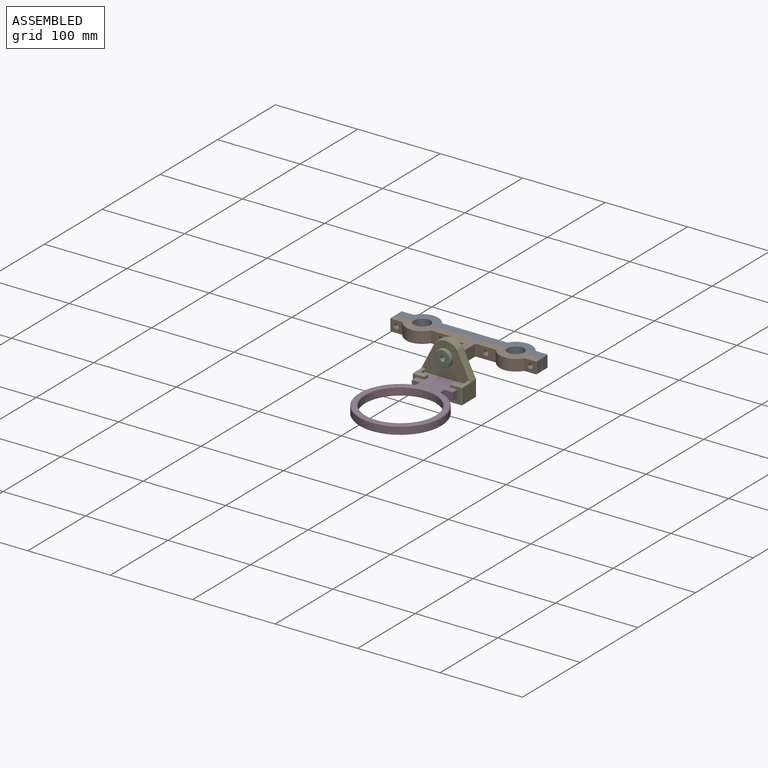
[diagram: assembled view]
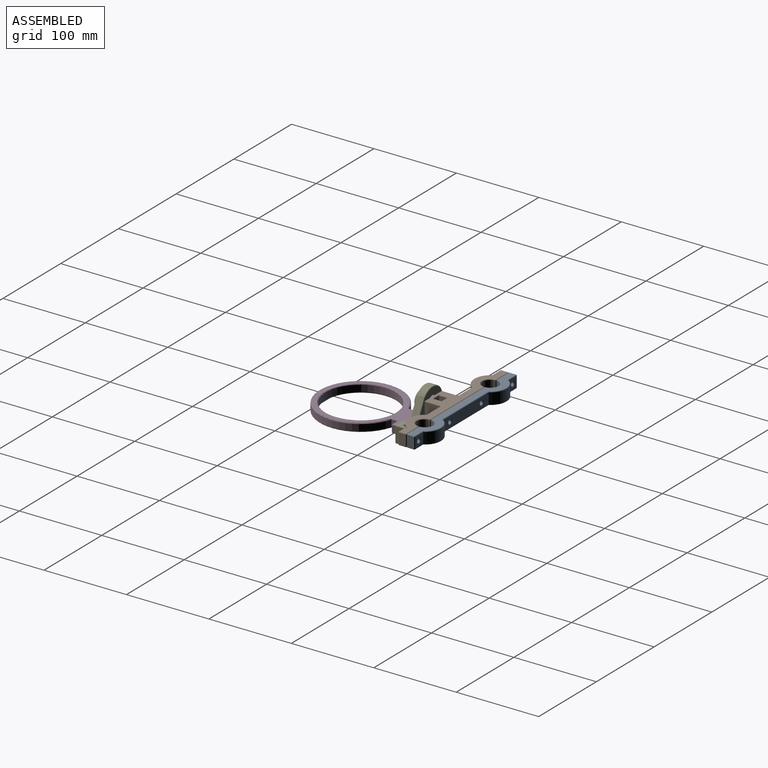
[diagram: assembled view, second angle]
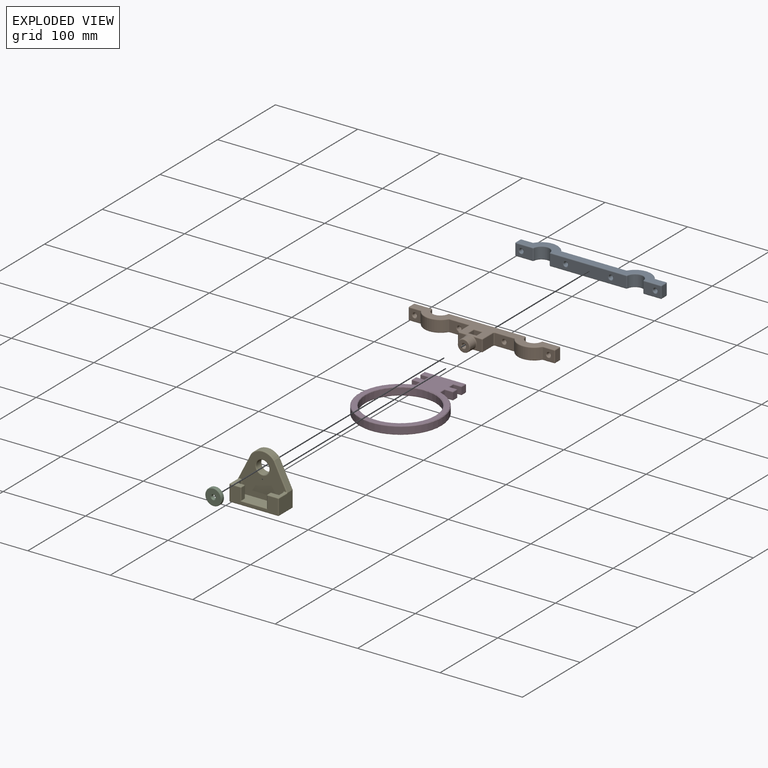
[diagram: exploded view]
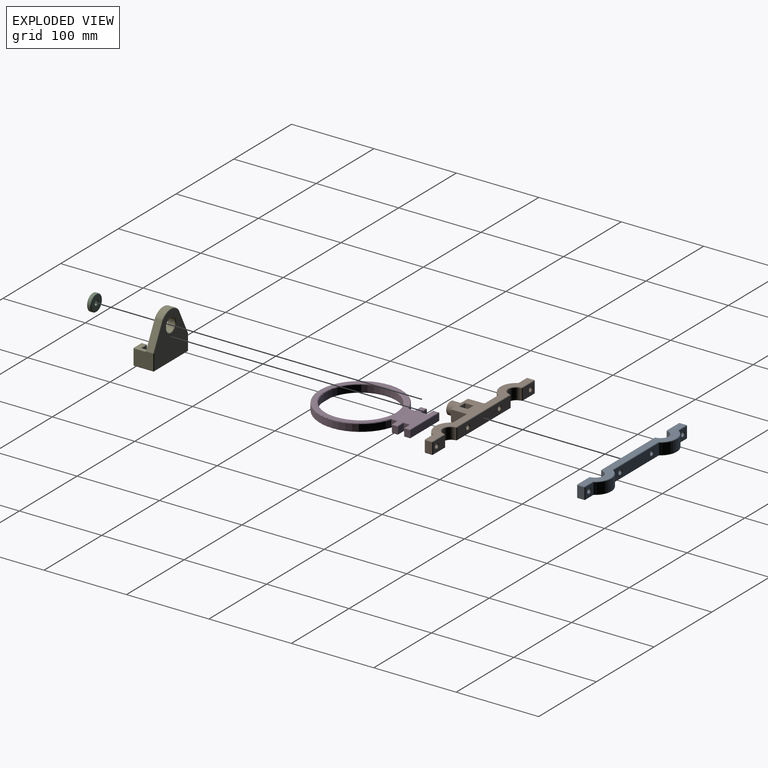
[diagram: exploded view, second angle]
ASSEMBLY  parts=5 mates=4
PART A: 86 faces, bbox 177.6x21.4x15 mm
  f0: cylinder r=19.75mm len=33.49mm, axis (0,0,-1), area 519.7mm2, adj f74,f79,f82,f85
  f1: plane 13.44x13mm, normal (0,1,0), area 136.2mm2, adj f25,f71,f80,f81,f85
  f2: plane 13x8mm, normal (-1,0,0), area 104mm2, adj f61,f70,f71,f72
  f3: plane 20.33x13mm, normal (0,-1,0), area 225.8mm2, adj f18,f51,f60,f61,f62
  f4: cylinder r=9.75mm len=19.42mm, axis (0,0,-1), area 374.6mm2, adj f41,f50,f51,f52
  f5: plane 92.09x13mm, normal (0,-1,0), area 1120.2mm2, adj f20,f21,f31,f40,f41,f42
  f6: cylinder r=9.75mm len=19.42mm, axis (0,0,-1), area 374.6mm2, adj f26,f30,f31,f32
  f7: plane 20.33x13mm, normal (0,-1,0), area 225.8mm2, adj f19,f26,f29,f33,f34
  f8: plane 13x8mm, normal (1,0,0), area 104mm2, adj f34,f39,f43,f44
  f9: plane 13.44x13mm, normal (0,1,0), area 136.2mm2, adj f23,f44,f49,f53,f54
  f10: cylinder r=19.75mm len=33.49mm, axis (0,0,-1), area 519.7mm2, adj f54,f59,f63,f64
  f11: plane 78.31x13mm, normal (0,1,0), area 941.1mm2, adj f22,f24,f64,f69,f73,f74
  f12: plane 175.56x17.75mm, normal (0,0,1), area 1541.6mm2, adj f29,f30,f39,f40,f49,f50,f55,f59
  f13: plane 175.56x17.75mm, normal (0,0,-1), area 1541.6mm2, adj f32,f33,f42,f43,f52,f53,f58,f62
  f14: cylinder r=2.5mm len=8mm, axis (0,-1,0), area 125.7mm2, adj f21,f22
  f15: cylinder r=2.5mm len=8mm, axis (0,-1,0), area 125.7mm2, adj f20,f24
  f16: cylinder r=2.5mm len=8mm, axis (0,-1,0), area 125.7mm2, adj f19,f23
  f17: cylinder r=2.5mm len=8mm, axis (0,-1,0), area 125.7mm2, adj f18,f25
  f18: torus R=3.5mm, axis (0,1,0), area 28.3mm2, adj f3,f17
  f19: torus R=3.5mm, axis (0,1,0), area 28.3mm2, adj f7,f16
  f20: torus R=3.5mm, axis (0,1,0), area 28.3mm2, adj f5,f15
  f21: torus R=3.5mm, axis (0,1,0), area 28.3mm2, adj f5,f14
  f22: torus R=3.5mm, axis (0,1,0), area 28.3mm2, adj f11,f14
  f23: torus R=3.5mm, axis (0,-1,0), area 28.3mm2, adj f9,f16
  f24: torus R=3.5mm, axis (0,1,0), area 28.3mm2, adj f11,f15
  f25: torus R=3.5mm, axis (0,-1,0), area 28.3mm2, adj f1,f17
  f26: cylinder r=1mm len=13mm, axis (0,0,-1), area 19.2mm2, adj f6,f7,f27,f28
  f27: sphere r=1mm, area 1.5mm2, adj f26,f29,f30
  f28: sphere r=1mm, area 1.5mm2, adj f26,f32,f33
  f29: cylinder r=1mm len=20.33mm, axis (-1,0,0), area 31.9mm2, adj f7,f12,f27,f35
  f30: torus R=10.75mm, axis (0,0,1), area 46.9mm2, adj f6,f12,f27,f36
  f31: cylinder r=1mm len=13mm, axis (0,0,-1), area 19.2mm2, adj f5,f6,f36,f37
  f32: torus R=10.75mm, axis (0,0,1), area 46.9mm2, adj f6,f13,f28,f37
  f33: cylinder r=1mm len=20.33mm, axis (1,0,0), area 31.9mm2, adj f7,f13,f28,f38
  f34: cylinder r=1mm len=13mm, axis (0,0,-1), area 20.4mm2, adj f7,f8,f35,f38
  f35: sphere r=1mm, area 1.6mm2, adj f29,f34,f39
  f36: sphere r=1mm, area 1.5mm2, adj f30,f31,f40
  f37: sphere r=1mm, area 1.5mm2, adj f31,f32,f42
  f38: sphere r=1mm, area 1.6mm2, adj f33,f34,f43
  f39: cylinder r=1mm len=8mm, axis (0,-1,0), area 12.6mm2, adj f8,f12,f35,f45
  f40: cylinder r=1mm len=92.09mm, axis (-1,0,0), area 144.7mm2, adj f5,f12,f36,f46
  f41: cylinder r=1mm len=13mm, axis (0,0,-1), area 19.2mm2, adj f4,f5,f46,f47
  f42: cylinder r=1mm len=92.09mm, axis (1,0,0), area 144.7mm2, adj f5,f13,f37,f47
  f43: cylinder r=1mm len=8mm, axis (0,1,0), area 12.6mm2, adj f8,f13,f38,f48
  f44: cylinder r=1mm len=13mm, axis (0,0,-1), area 20.4mm2, adj f8,f9,f45,f48
  f45: sphere r=1mm, area 1.6mm2, adj f39,f44,f49
  f46: sphere r=1mm, area 1.5mm2, adj f40,f41,f50
  f47: sphere r=1mm, area 1.5mm2, adj f41,f42,f52
  f48: sphere r=1mm, area 1.6mm2, adj f43,f44,f53
  f49: cylinder r=1mm len=13.44mm, axis (1,0,0), area 21.1mm2, adj f9,f12,f45,f55
  f50: torus R=10.75mm, axis (0,0,1), area 46.9mm2, adj f4,f12,f46,f56
  f51: cylinder r=1mm len=13mm, axis (0,0,-1), area 19.2mm2, adj f3,f4,f56,f57
  f52: torus R=10.75mm, axis (0,0,1), area 46.9mm2, adj f4,f13,f47,f57
  f53: cylinder r=1mm len=13.44mm, axis (-1,0,0), area 21.1mm2, adj f9,f13,f48,f58
  f54: cylinder r=1mm len=13mm, axis (0,0,-1), area 13.2mm2, adj f9,f10,f55,f58
  f55: torus R=2mm, axis (0,0,1), area 2.2mm2, adj f12,f49,f54,f59
  f56: sphere r=1mm, area 1.5mm2, adj f50,f51,f60
  f57: sphere r=1mm, area 1.5mm2, adj f51,f52,f62
  f58: torus R=2mm, axis (0,0,1), area 2.2mm2, adj f13,f53,f54,f63
  f59: torus R=18.75mm, axis (0,0,1), area 61.6mm2, adj f10,f12,f55,f65
  f60: cylinder r=1mm len=20.33mm, axis (-1,0,0), area 31.9mm2, adj f3,f12,f56,f66
  f61: cylinder r=1mm len=13mm, axis (0,0,-1), area 20.4mm2, adj f2,f3,f66,f67
  f62: cylinder r=1mm len=20.33mm, axis (1,0,0), area 31.9mm2, adj f3,f13,f57,f67
  f63: torus R=18.75mm, axis (0,0,1), area 61.6mm2, adj f10,f13,f58,f68
  f64: cylinder r=1mm len=13mm, axis (0,0,-1), area 13.2mm2, adj f10,f11,f65,f68
  f65: torus R=2mm, axis (0,0,1), area 2.2mm2, adj f12,f59,f64,f69
  f66: sphere r=1mm, area 1.6mm2, adj f60,f61,f70
  f67: sphere r=1mm, area 1.6mm2, adj f61,f62,f72
  f68: torus R=2mm, axis (0,0,1), area 2.2mm2, adj f13,f63,f64,f73
  f69: cylinder r=1mm len=78.31mm, axis (1,0,0), area 123mm2, adj f11,f12,f65,f75
  f70: cylinder r=1mm len=8mm, axis (0,1,0), area 12.6mm2, adj f2,f12,f66,f76
  f71: cylinder r=1mm len=13mm, axis (0,0,-1), area 20.4mm2, adj f1,f2,f76,f77
  f72: cylinder r=1mm len=8mm, axis (0,-1,0), area 12.6mm2, adj f2,f13,f67,f77
  f73: cylinder r=1mm len=78.31mm, axis (-1,0,0), area 123mm2, adj f11,f13,f68,f78
  f74: cylinder r=1mm len=13mm, axis (0,0,-1), area 13.2mm2, adj f0,f11,f75,f78
  f75: torus R=2mm, axis (0,0,1), area 2.2mm2, adj f12,f69,f74,f79
  f76: sphere r=1mm, area 1.6mm2, adj f70,f71,f80
  f77: sphere r=1mm, area 1.6mm2, adj f71,f72,f81
  f78: torus R=2mm, axis (0,0,1), area 2.2mm2, adj f13,f73,f74,f82
  f79: torus R=18.75mm, axis (0,0,1), area 61.6mm2, adj f0,f12,f75,f83
  f80: cylinder r=1mm len=13.44mm, axis (1,0,0), area 21.1mm2, adj f1,f12,f76,f83
  f81: cylinder r=1mm len=13.44mm, axis (-1,0,0), area 21.1mm2, adj f1,f13,f77,f84
  f82: torus R=18.75mm, axis (0,0,1), area 61.6mm2, adj f0,f13,f78,f84
  f83: torus R=2mm, axis (0,0,1), area 2.2mm2, adj f12,f79,f80,f85
  f84: torus R=2mm, axis (0,0,1), area 2.2mm2, adj f13,f81,f82,f85
  f85: cylinder r=1mm len=13mm, axis (0,0,-1), area 13.2mm2, adj f0,f1,f83,f84
PART B: 143 faces, bbox 177.6x41x16.2 mm
  f0: cylinder r=7.5mm len=15mm, axis (0,1,0), area 424.1mm2, adj f1,f137,f138,f139,f140,f141,f142
  f1: bspline ~4.96x1.76mm, area 3.8mm2, adj f0,f2,f137,f141
  f2: bspline ~5.48x1.48mm, area 3.5mm2, adj f1,f3,f136,f137
  f3: bspline ~5.48x1.03mm, area 4.7mm2, adj f2,f4,f135,f136
  f4: bspline ~5.48x1.03mm, area 4.7mm2, adj f3,f5,f6,f135
  f5: bspline ~5.48x1.48mm, area 3.5mm2, adj f4,f6,f140,f141
  f6: cylinder r=1mm len=8.61mm, axis (1,0,0), area 13.5mm2, adj f4,f5,f7,f134,f135
  f7: plane 13x8.52mm, normal (0,-1,0), area 83.5mm2, adj f6,f8,f133,f140
  f8: cylinder r=1mm len=13mm, axis (0,0,-1), area 20.4mm2, adj f7,f9,f132,f134
  f9: sphere r=1mm, area 1.6mm2, adj f8,f10,f133
  f10: cylinder r=1mm len=18mm, axis (0,-1,0), area 28.3mm2, adj f9,f11,f131,f132
  f11: plane 175.56x28mm, normal (0,0,1), area 1959.3mm2, adj f10,f12,f14,f16,f99,f100,f101,f102
  f12: bspline ~5.48x1.03mm, area 4.7mm2, adj f11,f13,f14,f133
  f13: bspline ~5.48x1.48mm, area 3.5mm2, adj f12,f133,f139,f140
  f14: bspline ~5.48x1.03mm, area 4.7mm2, adj f11,f12,f15,f16
  f15: bspline ~5.48x1.48mm, area 3.5mm2, adj f14,f16,f137,f138
  f16: cylinder r=1mm len=8.61mm, axis (-1,0,0), area 13.5mm2, adj f11,f14,f15,f17,f98
  f17: plane 13x8.52mm, normal (0,-1,0), area 83.5mm2, adj f16,f18,f136,f137
  f18: cylinder r=1mm len=13mm, axis (0,0,-1), area 20.4mm2, adj f17,f19,f97,f98
  f19: sphere r=1mm, area 1.6mm2, adj f18,f20,f136
  f20: cylinder r=1mm len=18mm, axis (0,-1,0), area 28.3mm2, adj f19,f21,f97,f135
  f21: torus R=2mm, axis (0,0,1), area 3.4mm2, adj f20,f22,f96,f135
  f22: cylinder r=1mm len=13mm, axis (0,0,1), area 20.4mm2, adj f21,f23,f97,f100
  f23: plane 23.16x13mm, normal (0,-1,0), area 262.5mm2, adj f22,f24,f95,f96,f101
  f24: cylinder r=1mm len=13mm, axis (0,0,-1), area 13.2mm2, adj f23,f25,f94,f102
  f25: cylinder r=19.75mm len=33.49mm, axis (0,0,-1), area 519.7mm2, adj f24,f26,f93,f103
  f26: torus R=18.75mm, axis (0,0,1), area 61.6mm2, adj f25,f27,f94,f135
  f27: torus R=2mm, axis (0,0,1), area 2.2mm2, adj f26,f28,f93,f135
  f28: cylinder r=1mm len=13.44mm, axis (1,0,0), area 21.1mm2, adj f27,f29,f92,f135
  f29: plane 13.44x13mm, normal (0,-1,0), area 136.2mm2, adj f28,f30,f91,f93,f105
  f30: cylinder r=1mm len=13mm, axis (0,0,-1), area 20.4mm2, adj f29,f31,f90,f92
  f31: plane 13x8mm, normal (-1,0,0), area 104mm2, adj f30,f32,f88,f106
  f32: cylinder r=1mm len=8mm, axis (0,-1,0), area 12.6mm2, adj f31,f33,f92,f135
  f33: sphere r=1mm, area 1.6mm2, adj f32,f34,f88
  f34: cylinder r=1mm len=20.33mm, axis (-1,0,0), area 31.9mm2, adj f33,f35,f87,f135
  f35: plane 20.33x13mm, normal (0,1,0), area 225.8mm2, adj f34,f36,f85,f88,f107
  f36: cylinder r=1mm len=13mm, axis (0,0,-1), area 19.2mm2, adj f35,f37,f84,f87
  f37: cylinder r=9.75mm len=19.42mm, axis (0,0,-1), area 374.6mm2, adj f36,f38,f83,f108
  f38: cylinder r=1mm len=13mm, axis (0,0,-1), area 19.2mm2, adj f37,f39,f79,f82
  f39: sphere r=1mm, area 1.5mm2, adj f38,f40,f83
  f40: cylinder r=1mm len=92.09mm, axis (-1,0,0), area 144.7mm2, adj f39,f41,f78,f79,f135
  f41: sphere r=1mm, area 0.5mm2, adj f40,f42,f76
  f42: torus R=10.75mm, axis (0,0,1), area 46.9mm2, adj f41,f43,f75,f78,f135
  f43: sphere r=1mm, area 1.5mm2, adj f42,f44,f73
  f44: cylinder r=1mm len=20.33mm, axis (-1,0,0), area 31.9mm2, adj f43,f45,f72,f135
  f45: sphere r=1mm, area 1mm2, adj f44,f46,f70
  f46: cylinder r=1mm len=8mm, axis (0,1,0), area 12.6mm2, adj f45,f47,f69,f135
  f47: sphere r=1mm, area 1.6mm2, adj f46,f48,f67
  f48: cylinder r=1mm len=13.44mm, axis (1,0,0), area 21.1mm2, adj f47,f49,f63,f135
  f49: torus R=2mm, axis (0,0,1), area 2.2mm2, adj f48,f50,f62,f135
  f50: torus R=18.75mm, axis (0,0,1), area 61.6mm2, adj f49,f51,f61,f135
  f51: torus R=2mm, axis (0,0,1), area 2.2mm2, adj f50,f52,f60,f135
  f52: cylinder r=1mm len=23.16mm, axis (1,0,0), area 36.4mm2, adj f51,f53,f56,f135
  f53: torus R=2mm, axis (0,0,1), area 3.4mm2, adj f52,f54,f55,f135
  f54: cylinder r=1mm len=18mm, axis (0,1,0), area 28.3mm2, adj f53,f132,f134,f135
  f55: cylinder r=1mm len=13mm, axis (0,0,1), area 20.4mm2, adj f53,f56,f131,f132
  f56: plane 23.16x13mm, normal (0,-1,0), area 262.5mm2, adj f52,f55,f57,f60,f117
  f57: torus R=3.5mm, axis (0,1,0), area 28.3mm2, adj f56,f58
  f58: cylinder r=2.5mm len=8mm, axis (0,-1,0), area 125.7mm2, adj f57,f59
  f59: torus R=3.5mm, axis (0,1,0), area 28.3mm2, adj f58,f79
  f60: cylinder r=1mm len=13mm, axis (0,0,-1), area 13.2mm2, adj f51,f56,f61,f116
  f61: cylinder r=19.75mm len=33.49mm, axis (0,0,-1), area 519.7mm2, adj f50,f60,f62,f115
  f62: cylinder r=1mm len=13mm, axis (0,0,-1), area 13.2mm2, adj f49,f61,f63,f114
  f63: plane 13.44x13mm, normal (0,-1,0), area 136.2mm2, adj f48,f62,f64,f67,f113
  f64: torus R=3.5mm, axis (0,1,0), area 28.3mm2, adj f63,f65
  f65: cylinder r=2.5mm len=8mm, axis (0,-1,0), area 125.7mm2, adj f64,f66
  f66: torus R=3.5mm, axis (0,-1,0), area 28.3mm2, adj f65,f72
  f67: cylinder r=1mm len=13mm, axis (0,0,-1), area 20.4mm2, adj f47,f63,f68,f69
  f68: sphere r=1mm, area 1.6mm2, adj f67,f112,f113
  f69: plane 13x8mm, normal (1,0,0), area 104mm2, adj f46,f67,f70,f112
  f70: cylinder r=1mm len=13mm, axis (0,0,-1), area 20.4mm2, adj f45,f69,f71,f72
  f71: sphere r=1mm, area 1.6mm2, adj f70,f111,f112
  f72: plane 20.33x13mm, normal (0,1,0), area 225.8mm2, adj f44,f66,f70,f73,f111
  f73: cylinder r=1mm len=13mm, axis (0,0,-1), area 19.2mm2, adj f43,f72,f74,f75
  f74: sphere r=1mm, area 0.9mm2, adj f73,f110,f111
  f75: cylinder r=9.75mm len=19.42mm, axis (0,0,-1), area 374.6mm2, adj f42,f73,f76,f110
  f76: cylinder r=1mm len=13mm, axis (0,0,-1), area 19.2mm2, adj f41,f75,f77,f79
  f77: sphere r=1mm, area 1.5mm2, adj f76,f109,f110
  f78: sphere r=1mm, area 0.2mm2, adj f40,f42
  f79: plane 92.09x13mm, normal (0,1,0), area 1120.2mm2, adj f38,f40,f59,f76,f80,f109
  f80: torus R=3.5mm, axis (0,1,0), area 28.3mm2, adj f79,f81
  f81: cylinder r=2.5mm len=8mm, axis (0,-1,0), area 125.7mm2, adj f80,f95
  f82: sphere r=1mm, area 1.5mm2, adj f38,f108,f109
  f83: torus R=10.75mm, axis (0,0,1), area 46.9mm2, adj f37,f39,f87,f135
  f84: sphere r=1mm, area 1.5mm2, adj f36,f107,f108
  f85: torus R=3.5mm, axis (0,-1,0), area 28.3mm2, adj f35,f86
  f86: cylinder r=2.5mm len=8mm, axis (0,-1,0), area 125.7mm2, adj f85,f91
  f87: sphere r=1mm, area 0.9mm2, adj f34,f36,f83
  f88: cylinder r=1mm len=13mm, axis (0,0,-1), area 20.4mm2, adj f31,f33,f35,f89
  f89: sphere r=1mm, area 2.1mm2, adj f88,f106,f107
  f90: sphere r=1mm, area 1.6mm2, adj f30,f105,f106
  f91: torus R=3.5mm, axis (0,1,0), area 28.3mm2, adj f29,f86
  f92: sphere r=1mm, area 1.6mm2, adj f28,f30,f32
  f93: cylinder r=1mm len=13mm, axis (0,0,-1), area 13.2mm2, adj f25,f27,f29,f104
  f94: torus R=2mm, axis (0,0,1), area 2.2mm2, adj f24,f26,f96,f135
  f95: torus R=3.5mm, axis (0,1,0), area 28.3mm2, adj f23,f81
  f96: cylinder r=1mm len=23.16mm, axis (1,0,0), area 36.4mm2, adj f21,f23,f94,f135
  f97: plane 18x13mm, normal (-1,0,0), area 234mm2, adj f18,f20,f22,f99
  f98: sphere r=1mm, area 1.6mm2, adj f16,f18,f99
  f99: cylinder r=1mm len=18mm, axis (0,1,0), area 28.3mm2, adj f11,f97,f98,f100
  f100: torus R=2mm, axis (0,0,1), area 3.4mm2, adj f11,f22,f99,f101
  f101: cylinder r=1mm len=23.16mm, axis (-1,0,0), area 36.4mm2, adj f11,f23,f100,f102
  f102: torus R=2mm, axis (0,0,1), area 2.2mm2, adj f11,f24,f101,f103
  f103: torus R=18.75mm, axis (0,0,1), area 61.6mm2, adj f11,f25,f102,f104
  f104: torus R=2mm, axis (0,0,1), area 2.2mm2, adj f11,f93,f103,f105
  f105: cylinder r=1mm len=13.44mm, axis (-1,0,0), area 21.1mm2, adj f11,f29,f90,f104
  f106: cylinder r=1mm len=8mm, axis (0,1,0), area 12.6mm2, adj f11,f31,f89,f90
  f107: cylinder r=1mm len=20.33mm, axis (1,0,0), area 31.9mm2, adj f11,f35,f84,f89
  f108: torus R=10.75mm, axis (0,0,1), area 46.9mm2, adj f11,f37,f82,f84
  f109: cylinder r=1mm len=92.09mm, axis (1,0,0), area 144.7mm2, adj f11,f77,f79,f82
  f110: torus R=10.75mm, axis (0,0,1), area 46.9mm2, adj f11,f74,f75,f77
  f111: cylinder r=1mm len=20.33mm, axis (1,0,0), area 31.9mm2, adj f11,f71,f72,f74
  f112: cylinder r=1mm len=8mm, axis (0,-1,0), area 12.6mm2, adj f11,f68,f69,f71
  f113: cylinder r=1mm len=13.44mm, axis (-1,0,0), area 21.1mm2, adj f11,f63,f68,f114
  f114: torus R=2mm, axis (0,0,1), area 2.2mm2, adj f11,f62,f113,f115
  f115: torus R=18.75mm, axis (0,0,1), area 61.6mm2, adj f11,f61,f114,f116
  f116: torus R=2mm, axis (0,0,1), area 2.2mm2, adj f11,f60,f115,f117
  f117: cylinder r=1mm len=23.16mm, axis (-1,0,0), area 36.4mm2, adj f11,f56,f116,f131
  f118: cylinder r=1mm len=12mm, axis (1,0,0), area 17.3mm2, adj f11,f119,f128,f130
  f119: plane 13x10mm, normal (0,-1,0), area 130mm2, adj f118,f120,f126,f127
  f120: plane 10x10mm, normal (0,0,1), area 100mm2, adj f119,f121,f126,f127
  f121: plane 13x10mm, normal (0,1,0), area 91.5mm2, adj f120,f122,f126,f127,f129
  f122: torus R=3.5mm, axis (0,-1,0), area 28.3mm2, adj f121,f123
  f123: cylinder r=2.5mm len=13mm, axis (0,-1,0), area 204.2mm2, adj f122,f124
  f124: torus R=3.5mm, axis (0,-1,0), area 28.3mm2, adj f123,f125
  f125: plane 13x13mm, normal (0,-1,0), area 94.2mm2, adj f124,f142
  f126: plane 13x10mm, normal (1,0,0), area 130mm2, adj f119,f120,f121,f128
  f127: plane 13x10mm, normal (-1,0,0), area 130mm2, adj f119,f120,f121,f130
  f128: cylinder r=1mm len=12mm, axis (0,1,0), area 17.3mm2, adj f11,f118,f126,f129
  f129: cylinder r=1mm len=12mm, axis (-1,0,0), area 17.3mm2, adj f11,f121,f128,f130
  f130: cylinder r=1mm len=12mm, axis (0,-1,0), area 17.3mm2, adj f11,f118,f127,f129
  f131: torus R=2mm, axis (0,0,1), area 3.4mm2, adj f10,f11,f55,f117
  f132: plane 18x13mm, normal (1,0,0), area 234mm2, adj f8,f10,f54,f55
  f133: cylinder r=1mm len=8.61mm, axis (-1,0,0), area 13.5mm2, adj f7,f9,f11,f12,f13
  f134: sphere r=1mm, area 1.6mm2, adj f6,f8,f54
  f135: plane 175.56x28mm, normal (0,0,-1), area 2103.3mm2, adj f3,f4,f6,f20,f21,f26,f27,f28
  f136: cylinder r=1mm len=8.61mm, axis (1,0,0), area 13.5mm2, adj f2,f3,f17,f19,f135
  f137: torus R=8.5mm, axis (0,1,0), area 21.7mm2, adj f0,f1,f2,f15,f17,f138
  f138: bspline ~4.96x1.76mm, area 3.8mm2, adj f0,f15,f137,f139
  f139: bspline ~4.96x1.76mm, area 3.8mm2, adj f0,f13,f138,f140
  f140: torus R=8.5mm, axis (0,1,0), area 21.7mm2, adj f0,f5,f7,f13,f139,f141
  f141: bspline ~4.96x1.76mm, area 3.8mm2, adj f0,f1,f5,f140
  f142: torus R=6.5mm, axis (0,-1,0), area 70.4mm2, adj f0,f125
PART C: 8 faces, bbox 21.6x21.6x5 mm
  f0: cylinder r=2.5mm len=5mm, axis (0,0,-1), area 47.1mm2, adj f4,f6
  f1: cylinder r=10mm len=20mm, axis (0,0,-1), area 188.5mm2, adj f5,f7
  f2: plane 18x18mm, normal (0,0,1), area 216mm2, adj f6,f7
  f3: plane 18x18mm, normal (0,0,-1), area 216mm2, adj f4,f5
  f4: torus R=3.5mm, axis (0,0,1), area 28.3mm2, adj f0,f3
  f5: torus R=9mm, axis (0,0,1), area 95.1mm2, adj f1,f3
  f6: torus R=3.5mm, axis (0,0,1), area 28.3mm2, adj f0,f2
  f7: torus R=9mm, axis (0,0,1), area 95.1mm2, adj f1,f2
PART D: 53 faces, bbox 108.2x131.8x10 mm
  f0: cylinder r=50mm len=100mm, axis (0,0,-1), area 2269.5mm2, adj f1,f15,f33,f50
  f1: plane 8x7.5mm, normal (1,0,0), area 60mm2, adj f0,f2,f31,f48
  f2: plane 10x8mm, normal (0,-1,0), area 80mm2, adj f1,f3,f29,f46
  f3: plane 8x7.5mm, normal (1,0,0), area 60mm2, adj f2,f4,f27,f44
  f4: plane 10x8mm, normal (0,1,0), area 80mm2, adj f3,f5,f25,f42
  f5: plane 8x7.5mm, normal (1,0,0), area 60mm2, adj f4,f6,f23,f40
  f6: plane 10x8mm, normal (0,-1,0), area 80mm2, adj f5,f7,f21,f38
  f7: plane 8x7.5mm, normal (1,0,0), area 60mm2, adj f6,f8,f19,f36
  f8: plane 50x8mm, normal (0,1,0), area 400mm2, adj f7,f9,f20,f37
  f9: plane 8x7.5mm, normal (-1,0,0), area 60mm2, adj f8,f10,f22,f39
  f10: plane 10x8mm, normal (0,-1,0), area 80mm2, adj f9,f11,f24,f41
  f11: plane 8x7.5mm, normal (-1,0,0), area 60mm2, adj f10,f12,f26,f43
  f12: plane 10x8mm, normal (0,1,0), area 80mm2, adj f11,f13,f28,f45
  f13: plane 8x7.5mm, normal (-1,0,0), area 60mm2, adj f12,f14,f30,f47
  f14: plane 10x8mm, normal (0,-1,0), area 80mm2, adj f13,f15,f32,f49
  f15: plane 8x7.5mm, normal (-1,0,0), area 60mm2, adj f0,f14,f34,f51
  f16: cylinder r=42.5mm len=85mm, axis (0,0,-1), area 2136.3mm2, adj f35,f52
  f17: plane 125.7x98mm, normal (0,0,1), area 2612.7mm2, adj f36,f37,f38,f39,f40,f41,f42,f43
  f18: plane 125.7x98mm, normal (0,0,-1), area 2612.7mm2, adj f19,f20,f21,f22,f23,f24,f25,f26
  f19: cylinder r=1mm len=7.5mm, axis (0,1,0), area 10.6mm2, adj f7,f18,f20,f21
  f20: cylinder r=1mm len=50mm, axis (-1,0,0), area 77.4mm2, adj f8,f18,f19,f22
  f21: cylinder r=1mm len=11mm, axis (1,0,0), area 15.7mm2, adj f6,f18,f19,f23
  f22: cylinder r=1mm len=7.5mm, axis (0,-1,0), area 10.6mm2, adj f9,f18,f20,f24
  f23: cylinder r=1mm len=9.5mm, axis (0,1,0), area 12.9mm2, adj f5,f18,f21,f25
  f24: cylinder r=1mm len=11mm, axis (1,0,0), area 15.7mm2, adj f10,f18,f22,f26
  f25: cylinder r=1mm len=11mm, axis (-1,0,0), area 15.7mm2, adj f4,f18,f23,f27
  f26: cylinder r=1mm len=9.5mm, axis (0,-1,0), area 12.9mm2, adj f11,f18,f24,f28
  f27: cylinder r=1mm len=7.5mm, axis (0,1,0), area 10.6mm2, adj f3,f18,f25,f29
  f28: cylinder r=1mm len=11mm, axis (-1,0,0), area 15.7mm2, adj f12,f18,f26,f30
  f29: cylinder r=1mm len=11mm, axis (1,0,0), area 15.7mm2, adj f2,f18,f27,f31
  f30: cylinder r=1mm len=7.5mm, axis (0,-1,0), area 10.6mm2, adj f13,f18,f28,f32
  f31: cylinder r=1mm len=9.24mm, axis (0,1,0), area 12.8mm2, adj f1,f18,f29,f33
  f32: cylinder r=1mm len=11mm, axis (1,0,0), area 15.7mm2, adj f14,f18,f30,f34
  f33: torus R=49mm, axis (0,0,1), area 443.2mm2, adj f0,f18,f31,f34
  f34: cylinder r=1mm len=9.24mm, axis (0,-1,0), area 12.8mm2, adj f15,f18,f32,f33
  f35: torus R=43.5mm, axis (0,0,1), area 423mm2, adj f16,f18
  f36: cylinder r=1mm len=7.5mm, axis (0,-1,0), area 10.6mm2, adj f7,f17,f37,f38
  f37: cylinder r=1mm len=50mm, axis (1,0,0), area 77.4mm2, adj f8,f17,f36,f39
  f38: cylinder r=1mm len=11mm, axis (-1,0,0), area 15.7mm2, adj f6,f17,f36,f40
  f39: cylinder r=1mm len=7.5mm, axis (0,1,0), area 10.6mm2, adj f9,f17,f37,f41
  f40: cylinder r=1mm len=9.5mm, axis (0,-1,0), area 12.9mm2, adj f5,f17,f38,f42
  f41: cylinder r=1mm len=11mm, axis (-1,0,0), area 15.7mm2, adj f10,f17,f39,f43
  f42: cylinder r=1mm len=11mm, axis (1,0,0), area 15.7mm2, adj f4,f17,f40,f44
  f43: cylinder r=1mm len=9.5mm, axis (0,1,0), area 12.9mm2, adj f11,f17,f41,f45
  f44: cylinder r=1mm len=7.5mm, axis (0,-1,0), area 10.6mm2, adj f3,f17,f42,f46
  f45: cylinder r=1mm len=11mm, axis (1,0,0), area 15.7mm2, adj f12,f17,f43,f47
  f46: cylinder r=1mm len=11mm, axis (-1,0,0), area 15.7mm2, adj f2,f17,f44,f48
  f47: cylinder r=1mm len=7.5mm, axis (0,1,0), area 10.6mm2, adj f13,f17,f45,f49
  f48: cylinder r=1mm len=9.24mm, axis (0,-1,0), area 12.8mm2, adj f1,f17,f46,f50
  f49: cylinder r=1mm len=11mm, axis (-1,0,0), area 15.7mm2, adj f14,f17,f47,f51
  f50: torus R=49mm, axis (0,0,1), area 443.2mm2, adj f0,f17,f48,f51
  f51: cylinder r=1mm len=9.24mm, axis (0,1,0), area 12.8mm2, adj f15,f17,f49,f50
  f52: torus R=43.5mm, axis (0,0,1), area 423mm2, adj f16,f17
PART E: 82 faces, bbox 60x59.5x25 mm
  f0: plane 13x12.5mm, normal (0,1,0), area 82.5mm2, adj f62,f67,f71,f75,f76,f77
  f1: plane 13x12.5mm, normal (0,1,0), area 82.5mm2, adj f19,f22,f23,f31,f32,f33
  f2: plane 30.88x15.74mm, normal (0.89,0.45,0), area 277.5mm2, adj f54,f59,f65,f69,f73
  f3: cylinder r=18mm len=28.08mm, axis (0,0,-1), area 257.7mm2, adj f46,f47,f58,f59
  f4: plane 30.88x15.74mm, normal (-0.89,0.45,0), area 277.5mm2, adj f27,f35,f40,f45,f46
  f5: plane 23x18.76mm, normal (-1,0,0), area 420.8mm2, adj f23,f26,f27,f29,f37,f38
  f6: plane 58x23mm, normal (0,-1,0), area 1334mm2, adj f37,f42,f49,f50
  f7: cylinder r=8mm len=16mm, axis (0,0,-1), area 402.1mm2, adj f80,f81
  f8: plane 23x18.76mm, normal (1,0,0), area 420.8mm2, adj f49,f55,f61,f65,f71,f74
  f9: plane 56.74x52mm, normal (0,0,1), area 1882.5mm2, adj f12,f21,f25,f33,f45,f58,f69,f76
  f10: plane 58x56mm, normal (0,0,-1), area 2256mm2, adj f29,f35,f42,f47,f54,f55,f80
  f11: plane 14x5mm, normal (-1,0,0), area 70mm2, adj f12,f57,f67,f68
  f12: plane 51x14mm, normal (0,1,0), area 594mm2, adj f9,f11,f13,f15,f16,f17,f18,f20
  f13: plane 14x5mm, normal (1,0,0), area 70mm2, adj f12,f20,f32,f44
  f14: plane 58x18mm, normal (0,0,1), area 549mm2, adj f31,f38,f44,f50,f51,f57,f61,f62
  f15: plane 14x9mm, normal (0,0,-1), area 126mm2, adj f12,f16,f19,f20
  f16: plane 14x7mm, normal (1,0,0), area 98mm2, adj f12,f15,f21,f22
  f17: plane 14x9mm, normal (0,0,-1), area 126mm2, adj f12,f18,f68,f75
  f18: plane 14x7mm, normal (-1,0,0), area 98mm2, adj f12,f17,f77,f79
  f19: cylinder r=1mm len=10mm, axis (1,0,0), area 14.7mm2, adj f1,f15,f22,f24
  f20: cylinder r=1mm len=14mm, axis (0,1,0), area 22mm2, adj f12,f13,f15,f24
  f21: cylinder r=1mm len=14mm, axis (0,1,0), area 22mm2, adj f9,f12,f16,f25
  f22: cylinder r=1mm len=8mm, axis (0,0,1), area 11.6mm2, adj f1,f16,f19,f25
  f23: cylinder r=1mm len=13mm, axis (0,0,-1), area 20.4mm2, adj f1,f5,f26,f30
  f24: sphere r=1mm, area 1.6mm2, adj f19,f20,f32
  f25: torus R=2mm, axis (0,0,1), area 3.4mm2, adj f9,f21,f22,f33
  f26: torus R=2mm, axis (1,0,0), area 1.9mm2, adj f5,f23,f33,f34
  f27: cylinder r=1mm len=8.43mm, axis (0,0,-1), area 4mm2, adj f4,f5,f28,f34
  f28: sphere r=1mm, area 0.5mm2, adj f27,f29,f35
  f29: cylinder r=1mm len=18.76mm, axis (0,-1,0), area 29.5mm2, adj f5,f10,f28,f36
  f30: sphere r=1mm, area 1.6mm2, adj f23,f31,f38
  f31: cylinder r=1mm len=12.5mm, axis (1,0,0), area 19.6mm2, adj f1,f14,f30,f39
  f32: cylinder r=1mm len=5mm, axis (0,0,-1), area 7.9mm2, adj f1,f13,f24,f39
  f33: cylinder r=1mm len=2.5mm, axis (-1,0,0), area 3.7mm2, adj f1,f9,f25,f26,f40
  f34: sphere r=1mm, area 0.3mm2, adj f26,f27,f40
  f35: cylinder r=1mm len=31.33mm, axis (-0.45,-0.89,0), area 54.4mm2, adj f4,f10,f28,f41
  f36: sphere r=1mm, area 1.6mm2, adj f29,f37,f42
  f37: cylinder r=1mm len=23mm, axis (0,0,-1), area 36.1mm2, adj f5,f6,f36,f43
  f38: cylinder r=1mm len=18mm, axis (0,1,0), area 28.3mm2, adj f5,f14,f30,f43
  f39: sphere r=1mm, area 1.6mm2, adj f31,f32,f44
  f40: bspline ~1.82x1.82mm, area 1.6mm2, adj f4,f33,f34,f45
  f41: sphere r=1mm, area 0.2mm2, adj f35,f46,f47
  f42: cylinder r=1mm len=58mm, axis (1,0,0), area 91.1mm2, adj f6,f10,f36,f48
  f43: sphere r=1mm, area 1.6mm2, adj f37,f38,f50
  f44: cylinder r=1mm len=15mm, axis (0,-1,0), area 22.6mm2, adj f13,f14,f39,f51
  f45: cylinder r=1mm len=30.09mm, axis (0.45,0.89,0), area 52.3mm2, adj f4,f9,f40,f52
  f46: cylinder r=1mm len=8mm, axis (0,0,-1), area 1.6mm2, adj f3,f4,f41,f52
  f47: torus R=17mm, axis (0,0,1), area 49.6mm2, adj f3,f10,f41,f53
  f48: sphere r=1mm, area 1.6mm2, adj f42,f49,f55
  f49: cylinder r=1mm len=23mm, axis (0,0,-1), area 36.1mm2, adj f6,f8,f48,f56
  f50: cylinder r=1mm len=58mm, axis (-1,0,0), area 91.1mm2, adj f6,f14,f43,f56
  f51: cylinder r=1mm len=33mm, axis (1,0,0), area 49.8mm2, adj f12,f14,f44,f57
  f52: sphere r=1mm, area 0.2mm2, adj f45,f46,f58
  f53: sphere r=1mm, area 0.2mm2, adj f47,f54,f59
  f54: cylinder r=1mm len=31.33mm, axis (-0.45,0.89,0), area 54.4mm2, adj f2,f10,f53,f60
  f55: cylinder r=1mm len=18.76mm, axis (0,1,0), area 29.5mm2, adj f8,f10,f48,f60
  f56: sphere r=1mm, area 1.6mm2, adj f49,f50,f61
  f57: cylinder r=1mm len=15mm, axis (0,1,0), area 22.6mm2, adj f11,f14,f51,f63
  f58: torus R=17mm, axis (0,0,1), area 49.6mm2, adj f3,f9,f52,f64
  f59: cylinder r=1mm len=8mm, axis (0,0,-1), area 1.6mm2, adj f2,f3,f53,f64
  f60: sphere r=1mm, area 0.5mm2, adj f54,f55,f65
  f61: cylinder r=1mm len=18mm, axis (0,-1,0), area 28.3mm2, adj f8,f14,f56,f66
  f62: cylinder r=1mm len=12.5mm, axis (1,0,0), area 19.6mm2, adj f0,f14,f63,f66
  f63: sphere r=1mm, area 1.6mm2, adj f57,f62,f67
  f64: sphere r=1mm, area 0.2mm2, adj f58,f59,f69
  f65: cylinder r=1mm len=8.43mm, axis (0,0,-1), area 4mm2, adj f2,f8,f60,f70
  f66: sphere r=1mm, area 1.6mm2, adj f61,f62,f71
  f67: cylinder r=1mm len=5mm, axis (0,0,-1), area 7.9mm2, adj f0,f11,f63,f72
  f68: cylinder r=1mm len=14mm, axis (0,-1,0), area 22mm2, adj f11,f12,f17,f72
  f69: cylinder r=1mm len=30.09mm, axis (0.45,-0.89,0), area 52.3mm2, adj f2,f9,f64,f73
  f70: sphere r=1mm, area 0.3mm2, adj f65,f73,f74
  f71: cylinder r=1mm len=13mm, axis (0,0,-1), area 20.4mm2, adj f0,f8,f66,f74
  f72: sphere r=1mm, area 1.6mm2, adj f67,f68,f75
  f73: bspline ~1.82x1.82mm, area 1.6mm2, adj f2,f69,f70,f76
  f74: torus R=2mm, axis (-1,0,0), area 1.9mm2, adj f8,f70,f71,f76
  f75: cylinder r=1mm len=10mm, axis (1,0,0), area 14.7mm2, adj f0,f17,f72,f77
  f76: cylinder r=1mm len=2.5mm, axis (-1,0,0), area 3.7mm2, adj f0,f9,f73,f74,f78
  f77: cylinder r=1mm len=8mm, axis (0,0,-1), area 11.6mm2, adj f0,f18,f75,f78
  f78: torus R=2mm, axis (0,0,1), area 3.4mm2, adj f9,f76,f77,f79
  f79: cylinder r=1mm len=14mm, axis (0,-1,0), area 22mm2, adj f9,f12,f18,f78
  f80: torus R=9mm, axis (0,0,1), area 82.5mm2, adj f7,f10
  f81: torus R=9mm, axis (0,0,1), area 82.5mm2, adj f7,f9
PLACE A t=(32.77,66.51,69.26)mm
PLACE B t=(32.77,74.69,69.26)mm
PLACE C rot(axis=(1,0,0),90deg) t=(32.77,33.69,136.76)mm
PLACE D t=(32.27,-43.26,43.76)mm
PLACE E rot(axis=(1,0,0),90deg) t=(32.77,44.69,76.76)mm
MATE fastened E.f7 <-> B.f0  axis (0,-1,0) through (32.77,43.69,76.76)mm
MATE fastened E.f13 <-> D.f11  axis (1,0,0) through (17.27,23.19,48.76)mm
MATE fastened B.f0 <-> C.f0  axis (0,-1,0) through (32.77,33.69,76.76)mm
MATE fastened A.f5 <-> B.f0  axis (0,-1,0) through (32.77,74.69,76.76)mm
